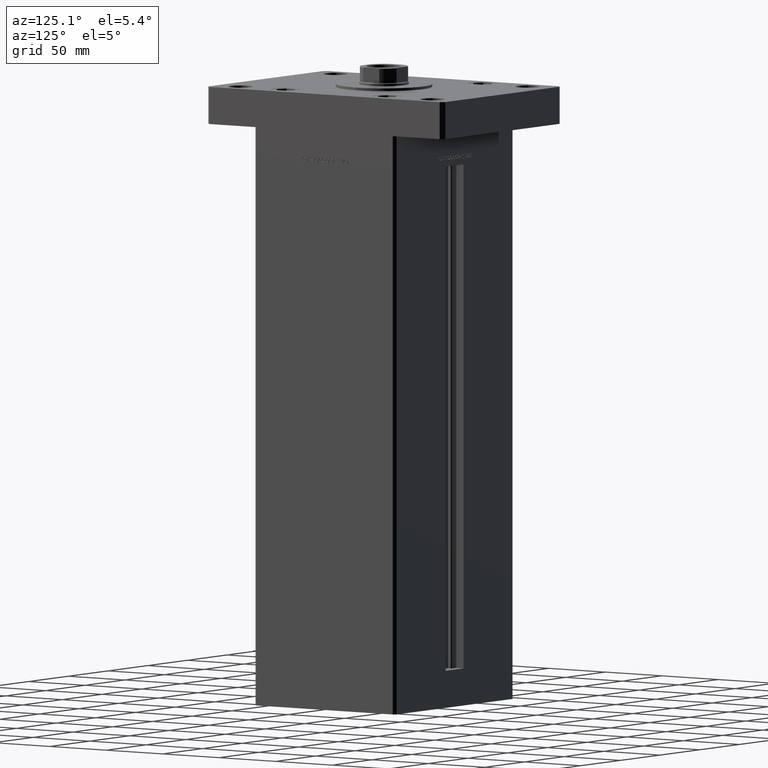
[diagram: clean part render]
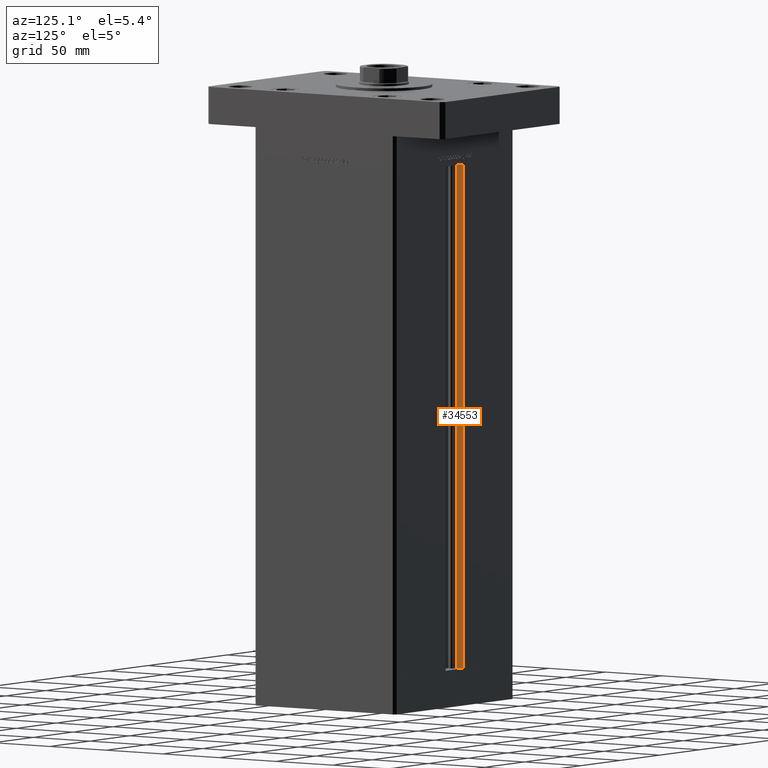
[diagram: same view with one face highlighted and labeled with its STEP entity id]
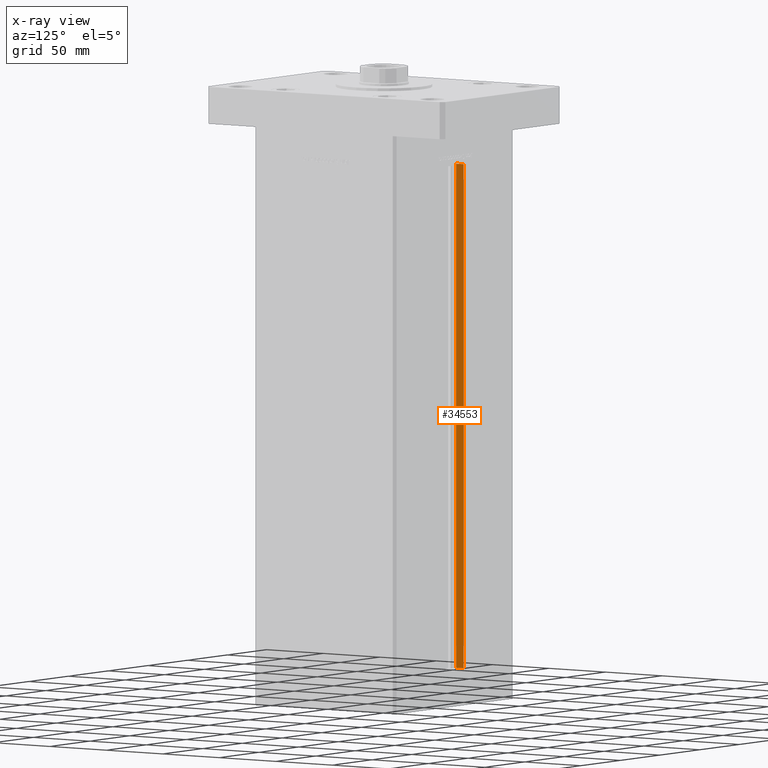
[diagram: x-ray of the same camera — body ghosted, the highlighted face saturated]
A machine part, auxiliary view. The second image highlights one B-rep face of the part: STEP entity #34553.
The next image is the same camera in x-ray: the body ghosted, the highlighted face saturated — about 0% of this face is hidden behind the body in this view.
In plain terms, the highlighted planar face has unit normal (-1, 0, 0).
Its self-contained STEP definition (entity closure, byte-faithful):
#129 = EDGE_CURVE ( 'NONE', #4113, #47185, #4532, .T. ) ;
#1500 = DIRECTION ( 'NONE',  ( 0.000000000000000000, 1.000000000000000000, 0.000000000000000000 ) ) ;
#4113 = VERTEX_POINT ( 'NONE', #30841 ) ;
#4532 = LINE ( 'NONE', #5333, #45647 ) ;
#5333 = CARTESIAN_POINT ( 'NONE',  ( -11.25000000000000178, 55.99999999999999289, 0.000000000000000000 ) ) ;
#5645 = EDGE_CURVE ( 'NONE', #43719, #29147, #33889, .T. ) ;
#9257 = CARTESIAN_POINT ( 'NONE',  ( -11.25000000000000178, 55.99999999999999289, 367.0000000000000000 ) ) ;
#9259 = DIRECTION ( 'NONE',  ( -0.000000000000000000, -0.000000000000000000, 1.000000000000000000 ) ) ;
#9906 = EDGE_LOOP ( 'NONE', ( #23006, #19741, #29485, #39099 ) ) ;
#10180 = PLANE ( 'NONE',  #29611 ) ;
#14248 = FACE_OUTER_BOUND ( 'NONE', #9906, .T. ) ;
#15300 = DIRECTION ( 'NONE',  ( 0.000000000000000000, 0.000000000000000000, 1.000000000000000000 ) ) ;
#19741 = ORIENTED_EDGE ( 'NONE', *, *, #20184, .F. ) ;
#20142 = DIRECTION ( 'NONE',  ( -1.000000000000000000, 0.000000000000000000, 0.000000000000000000 ) ) ;
#20184 = EDGE_CURVE ( 'NONE', #43719, #4113, #31792, .T. ) ;
#23006 = ORIENTED_EDGE ( 'NONE', *, *, #129, .F. ) ;
#25608 = LINE ( 'NONE', #42664, #38403 ) ;
#27466 = CARTESIAN_POINT ( 'NONE',  ( -11.25000000000000178, 55.99999999999999289, 0.000000000000000000 ) ) ;
#27473 = CARTESIAN_POINT ( 'NONE',  ( -11.25000000000000178, 55.99999999999999289, 0.000000000000000000 ) ) ;
#29147 = VERTEX_POINT ( 'NONE', #42468 ) ;
#29434 = DIRECTION ( 'NONE',  ( -0.000000000000000000, -0.000000000000000000, 1.000000000000000000 ) ) ;
#29485 = ORIENTED_EDGE ( 'NONE', *, *, #5645, .T. ) ;
#29611 = AXIS2_PLACEMENT_3D ( 'NONE', #27473, #20142, #15300 ) ;
#30841 = CARTESIAN_POINT ( 'NONE',  ( -11.25000000000000178, 55.99999999999999289, 0.000000000000000000 ) ) ;
#31792 = LINE ( 'NONE', #27466, #43440 ) ;
#33889 = LINE ( 'NONE', #50426, #41341 ) ;
#34553 = ADVANCED_FACE ( 'NONE', ( #14248 ), #10180, .F. ) ;
#38403 = VECTOR ( 'NONE', #1500, 1000.000000000000000 ) ;
#39099 = ORIENTED_EDGE ( 'NONE', *, *, #39999, .F. ) ;
#39999 = EDGE_CURVE ( 'NONE', #47185, #29147, #25608, .T. ) ;
#41341 = VECTOR ( 'NONE', #9259, 1000.000000000000000 ) ;
#42468 = CARTESIAN_POINT ( 'NONE',  ( -11.25000000000000178, 62.49999999999999289, 367.0000000000000000 ) ) ;
#42664 = CARTESIAN_POINT ( 'NONE',  ( -11.25000000000000178, 0.000000000000000000, 367.0000000000000000 ) ) ;
#43440 = VECTOR ( 'NONE', #44001, 1000.000000000000000 ) ;
#43658 = CARTESIAN_POINT ( 'NONE',  ( -11.25000000000000178, 62.49999999999999289, 0.000000000000000000 ) ) ;
#43719 = VERTEX_POINT ( 'NONE', #43658 ) ;
#44001 = DIRECTION ( 'NONE',  ( -0.000000000000000000, -1.000000000000000000, -0.000000000000000000 ) ) ;
#45647 = VECTOR ( 'NONE', #29434, 1000.000000000000000 ) ;
#47185 = VERTEX_POINT ( 'NONE', #9257 ) ;
#50426 = CARTESIAN_POINT ( 'NONE',  ( -11.25000000000000178, 62.49999999999999289, 0.000000000000000000 ) ) ;